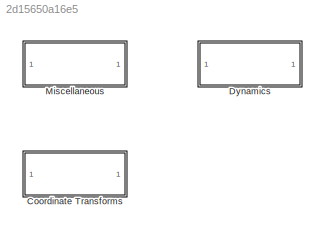
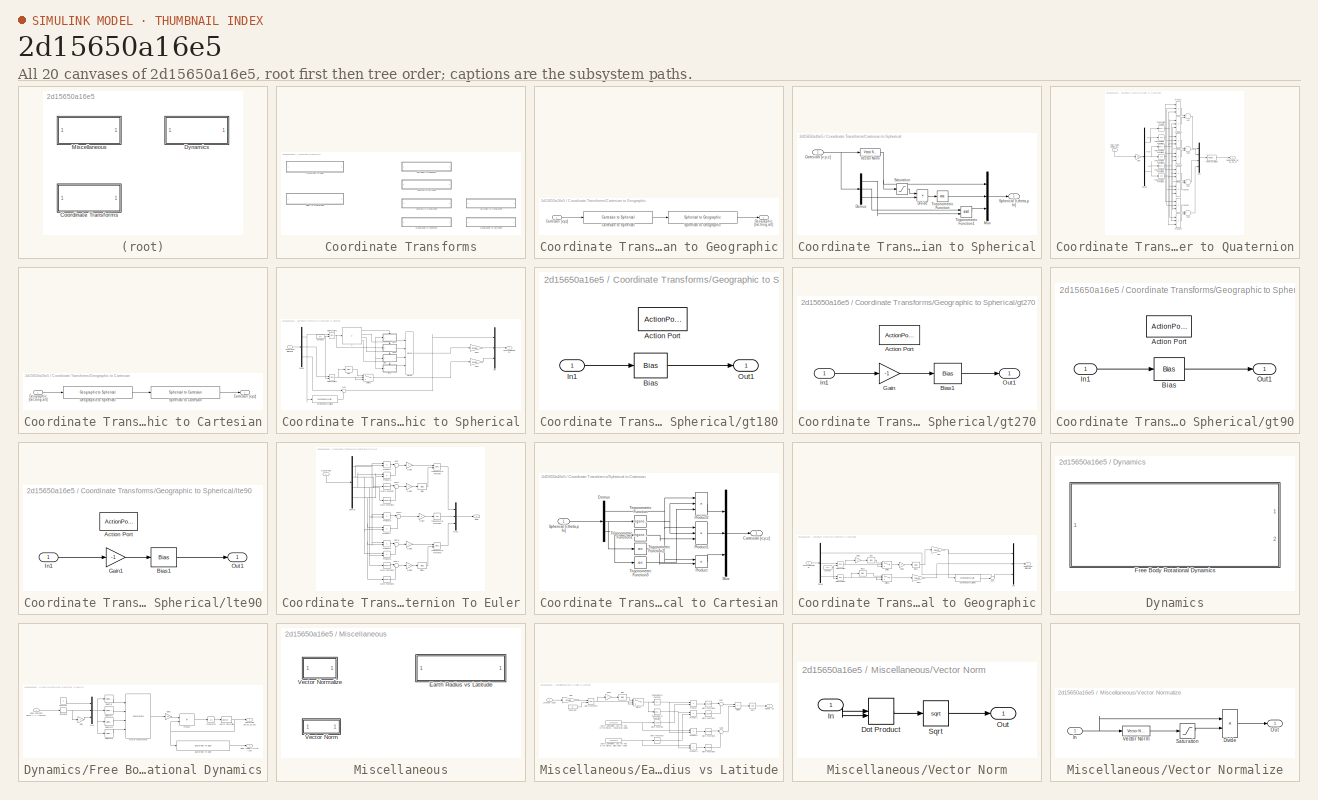
[diagram: thumbnail index - all 20 canvases of the model, root first then tree order]
MODEL slx_2d15650a16e5
KIND library
BLOCK [SubSystem] Coordinate Transforms
  Ports = []
  RequestExecContextInheritance = off
BLOCK [SubSystem] Coordinate Transforms/Cartesian to Geographic
  Ports = [1, 1]
  RequestExecContextInheritance = off
BLOCK [Inport] Coordinate Transforms/Cartesian to Geographic/Cartesian [x;y;z]
  IconDisplay = Port number
  PortDimensions = 3
  SignalType = real
  VarSizeSig = No
BLOCK [Reference] Coordinate Transforms/Cartesian to Geographic/Cartesian to Spherical  REF=MultiRotorSimLibrary/Coordinate Transforms/Cartesian to Spherical
  Ports = [1, 1]
  SourceBlock = MultiRotorSimLibrary/Coordinate Transforms/Cartesian to Spherical
  SourceType = Cartesian to Spherical Coordinate Transform
BLOCK [Outport] Coordinate Transforms/Cartesian to Geographic/Geographic [lat,long,alt]
  IconDisplay = Port number
  PortDimensions = 3
  SignalType = real
  VarSizeSig = No
BLOCK [Reference] Coordinate Transforms/Cartesian to Geographic/Spherical to Geographic  REF=MultiRotorSimLibrary/Coordinate Transforms/Spherical to Geographic
  Ports = [1, 1]
  SourceBlock = MultiRotorSimLibrary/Coordinate Transforms/Spherical to Geographic
  SourceType = Spherical to Geographic Coordinate Transform
BLOCK [SubSystem] Coordinate Transforms/Cartesian to Spherical
  Ports = [1, 1]
  RequestExecContextInheritance = off
BLOCK [Inport] Coordinate Transforms/Cartesian to Spherical/Cartesian [x;y;z]
  IconDisplay = Port number
  PortDimensions = 3
  SignalType = real
  VarSizeSig = No
BLOCK [Demux] Coordinate Transforms/Cartesian to Spherical/Demux
  DisplayOption = bar
  Outputs = 3
  Ports = [1, 3]
BLOCK [Product] Coordinate Transforms/Cartesian to Spherical/Divide
  InputSameDT = off
  Inputs = /*
  OutDataTypeStr = Inherit: Inherit via internal rule
  Ports = [2, 1]
  RndMeth = Floor
  SaturateOnIntegerOverflow = off
BLOCK [Mux] Coordinate Transforms/Cartesian to Spherical/Mux
  DisplayOption = bar
  Inputs = 3
  Ports = [3, 1]
BLOCK [Saturate] Coordinate Transforms/Cartesian to Spherical/Saturation
  InputPortMap = u0
  LowerLimit = eps('single')
  Ports = [1, 1]
  UpperLimit = inf
BLOCK [Outport] Coordinate Transforms/Cartesian to Spherical/Spherical [r,theta,phi]
  IconDisplay = Port number
  PortDimensions = 3
  SignalType = real
  VarSizeSig = No
BLOCK [Trigonometry] Coordinate Transforms/Cartesian to Spherical/Trigonometric Function
  Operator = acos
  Ports = [1, 1]
BLOCK [Trigonometry] Coordinate Transforms/Cartesian to Spherical/Trigonometric Function1
  Operator = atan2
  Ports = [2, 1]
BLOCK [Reference] Coordinate Transforms/Cartesian to Spherical/Vector Norm  REF=MultiRotorSimLibrary/Miscellaneous/Vector Norm
  Ports = [1, 1]
  SourceBlock = MultiRotorSimLibrary/Miscellaneous/Vector Norm
  SourceType = Vector Norm
BLOCK [SubSystem] Coordinate Transforms/Euler to Quaternion
  Ports = [1, 1]
  RequestExecContextInheritance = off
BLOCK [Sum] Coordinate Transforms/Euler to Quaternion/Add
  InputSameDT = off
  OutDataTypeStr = Inherit: Inherit via internal rule
  Ports = [2, 1]
  SaturateOnIntegerOverflow = off
BLOCK [Sum] Coordinate Transforms/Euler to Quaternion/Add1
  InputSameDT = off
  OutDataTypeStr = Inherit: Inherit via internal rule
  Ports = [2, 1]
  SaturateOnIntegerOverflow = off
BLOCK [Sum] Coordinate Transforms/Euler to Quaternion/Add2
  InputSameDT = off
  Inputs = +-
  OutDataTypeStr = Inherit: Inherit via internal rule
  Ports = [2, 1]
  SaturateOnIntegerOverflow = off
BLOCK [Sum] Coordinate Transforms/Euler to Quaternion/Add3
  InputSameDT = off
  Inputs = +-
  OutDataTypeStr = Inherit: Inherit via internal rule
  Ports = [2, 1]
  SaturateOnIntegerOverflow = off
BLOCK [Demux] Coordinate Transforms/Euler to Quaternion/Demux
  DisplayOption = bar
  Outputs = 3
  Ports = [1, 3]
BLOCK [Inport] Coordinate Transforms/Euler to Quaternion/Euler Angles [u'';v'';w''] (rad)
  IconDisplay = Port number
  PortDimensions = 3
  SignalType = real
  VarSizeSig = No
BLOCK [Gain] Coordinate Transforms/Euler to Quaternion/Gain
  Gain = 1/2
  OutDataTypeStr = Inherit: Inherit via internal rule
  ParamDataTypeStr = Inherit: Inherit via internal rule
  SaturateOnIntegerOverflow = off
BLOCK [Mux] Coordinate Transforms/Euler to Quaternion/Mux
  DisplayOption = bar
  Ports = [4, 1]
BLOCK [Product] Coordinate Transforms/Euler to Quaternion/Product
  InputSameDT = off
  Inputs = 3
  OutDataTypeStr = Inherit: Inherit via internal rule
  Ports = [3, 1]
  RndMeth = Floor
  SaturateOnIntegerOverflow = off
BLOCK [Product] Coordinate Transforms/Euler to Quaternion/Product1
  InputSameDT = off
  Inputs = 3
  OutDataTypeStr = Inherit: Inherit via internal rule
  Ports = [3, 1]
  RndMeth = Floor
  SaturateOnIntegerOverflow = off
BLOCK [Product] Coordinate Transforms/Euler to Quaternion/Product2
  InputSameDT = off
  Inputs = 3
  OutDataTypeStr = Inherit: Inherit via internal rule
  Ports = [3, 1]
  RndMeth = Floor
  SaturateOnIntegerOverflow = off
BLOCK [Product] Coordinate Transforms/Euler to Quaternion/Product3
  InputSameDT = off
  Inputs = 3
  OutDataTypeStr = Inherit: Inherit via internal rule
  Ports = [3, 1]
  RndMeth = Floor
  SaturateOnIntegerOverflow = off
BLOCK [Product] Coordinate Transforms/Euler to Quaternion/Product4
  InputSameDT = off
  Inputs = 3
  OutDataTypeStr = Inherit: Inherit via internal rule
  Ports = [3, 1]
  RndMeth = Floor
  SaturateOnIntegerOverflow = off
BLOCK [Product] Coordinate Transforms/Euler to Quaternion/Product5
  InputSameDT = off
  Inputs = 3
  OutDataTypeStr = Inherit: Inherit via internal rule
  Ports = [3, 1]
  RndMeth = Floor
  SaturateOnIntegerOverflow = off
BLOCK [Product] Coordinate Transforms/Euler to Quaternion/Product6
  InputSameDT = off
  Inputs = 3
  OutDataTypeStr = Inherit: Inherit via internal rule
  Ports = [3, 1]
  RndMeth = Floor
  SaturateOnIntegerOverflow = off
BLOCK [Product] Coordinate Transforms/Euler to Quaternion/Product7
  InputSameDT = off
  Inputs = 3
  OutDataTypeStr = Inherit: Inherit via internal rule
  Ports = [3, 1]
  RndMeth = Floor
  SaturateOnIntegerOverflow = off
BLOCK [Outport] Coordinate Transforms/Euler to Quaternion/Quaternion [q_0;q_1;q_2;q_3]
  IconDisplay = Port number
  PortDimensions = 4
  SignalType = real
  VarSizeSig = No
BLOCK [Trigonometry] Coordinate Transforms/Euler to Quaternion/Trigonometric Function
  Ports = [1, 1]
BLOCK [Trigonometry] Coordinate Transforms/Euler to Quaternion/Trigonometric Function1
  Operator = cos
  Ports = [1, 1]
BLOCK [Trigonometry] Coordinate Transforms/Euler to Quaternion/Trigonometric Function2
  Operator = cos
  Ports = [1, 1]
BLOCK [Trigonometry] Coordinate Transforms/Euler to Quaternion/Trigonometric Function3
  Operator = cos
  Ports = [1, 1]
BLOCK [Trigonometry] Coordinate Transforms/Euler to Quaternion/Trigonometric Function4
  Ports = [1, 1]
BLOCK [Trigonometry] Coordinate Transforms/Euler to Quaternion/Trigonometric Function5
  Ports = [1, 1]
BLOCK [Reference] Coordinate Transforms/Euler to Quaternion/Vector Normalize  REF=MultiRotorSimLibrary/Miscellaneous/Vector Normalize
  Ports = [1, 1]
  SourceBlock = MultiRotorSimLibrary/Miscellaneous/Vector Normalize
  SourceType = Vector Normalize
BLOCK [SubSystem] Coordinate Transforms/Geographic to Cartesian
  Ports = [1, 1]
  RequestExecContextInheritance = off
BLOCK [Outport] Coordinate Transforms/Geographic to Cartesian/Cartesian [x;y;z]
  IconDisplay = Port number
  PortDimensions = 3
  SignalType = real
  VarSizeSig = No
BLOCK [Inport] Coordinate Transforms/Geographic to Cartesian/Geographic [lat,long,alt]
  IconDisplay = Port number
  PortDimensions = 3
  SignalType = real
  VarSizeSig = No
BLOCK [Reference] Coordinate Transforms/Geographic to Cartesian/Geographic to Spherical  REF=MultiRotorSimLibrary/Coordinate Transforms/Geographic to Spherical
  Ports = [1, 1]
  SourceBlock = MultiRotorSimLibrary/Coordinate Transforms/Geographic to Spherical
  SourceType = Geographic to Spherical Coordinate Transform
BLOCK [Reference] Coordinate Transforms/Geographic to Cartesian/Spherical to Cartesian  REF=MultiRotorSimLibrary/Coordinate Transforms/Spherical to Cartesian
  Ports = [1, 1]
  SourceBlock = MultiRotorSimLibrary/Coordinate Transforms/Spherical to Cartesian
  SourceType = Spherical to Cartesian Coordinate Transform
BLOCK [SubSystem] Coordinate Transforms/Geographic to Spherical
  Ports = [1, 1]
  RequestExecContextInheritance = off
BLOCK [Bias] Coordinate Transforms/Geographic to Spherical/Bias
  Bias = -360
  SaturateOnIntegerOverflow = off
BLOCK [Constant] Coordinate Transforms/Geographic to Spherical/Constant1
  Value = 360
BLOCK [Demux] Coordinate Transforms/Geographic to Spherical/Demux
  DisplayOption = bar
  Outputs = 3
  Ports = [1, 3]
BLOCK [Reference] Coordinate Transforms/Geographic to Spherical/Earth Radius vs Latitude  REF=MultiRotorSimLibrary/Miscellaneous/Earth Radius vs Latitude
  Ports = [1, 1]
  SourceBlock = MultiRotorSimLibrary/Miscellaneous/Earth Radius vs Latitude
  SourceType = Earth Radius vs Latitude
BLOCK [Gain] Coordinate Transforms/Geographic to Spherical/Gain1
  Gain = pi/180
  OutDataTypeStr = Inherit: Inherit via internal rule
  ParamDataTypeStr = Inherit: Inherit via internal rule
  SaturateOnIntegerOverflow = off
BLOCK [Gain] Coordinate Transforms/Geographic to Spherical/Gain2
  Gain = pi/180
  OutDataTypeStr = Inherit: Inherit via internal rule
  ParamDataTypeStr = Inherit: Inherit via internal rule
  SaturateOnIntegerOverflow = off
BLOCK [Inport] Coordinate Transforms/Geographic to Spherical/Geographic [lat,long,alt]
  IconDisplay = Port number
  PortDimensions = 3
  SignalType = real
  VarSizeSig = No
BLOCK [If] Coordinate Transforms/Geographic to Spherical/If
  ElseIfExpressions = u1 > 180, u1 > 90
  IfExpression = u1 > 270
  Ports = [1, 4]
BLOCK [Math] Coordinate Transforms/Geographic to Spherical/Math Function1
  Operator = mod
  Ports = [2, 1]
BLOCK [Math] Coordinate Transforms/Geographic to Spherical/Math Function2
  Operator = mod
  Ports = [2, 1]
BLOCK [Merge] Coordinate Transforms/Geographic to Spherical/Merge
  Inputs = 4
  Ports = [4, 1]
BLOCK [Mux] Coordinate Transforms/Geographic to Spherical/Mux
  DisplayOption = bar
  Inputs = 3
  Ports = [3, 1]
BLOCK [Outport] Coordinate Transforms/Geographic to Spherical/Spherical [r,theta,phi]
  IconDisplay = Port number
  PortDimensions = 3
  SignalType = real
  VarSizeSig = No
BLOCK [Sum] Coordinate Transforms/Geographic to Spherical/Sum
  IconShape = round
  InputSameDT = off
  Inputs = |++
  OutDataTypeStr = Inherit: Inherit via internal rule
  Ports = [2, 1]
  SaturateOnIntegerOverflow = off
BLOCK [Switch] Coordinate Transforms/Geographic to Spherical/Switch1
  Criteria = u2 > Threshold
  InputSameDT = off
  SaturateOnIntegerOverflow = off
  Threshold = 180
BLOCK [SubSystem] Coordinate Transforms/Geographic to Spherical/gt180
  Ports = [1, 1, 0, 0, 0, 0, 0, 1]
  RequestExecContextInheritance = off
  TreatAsAtomicUnit = on
BLOCK [ActionPort] Coordinate Transforms/Geographic to Spherical/gt180/Action Port
  ActionType = elseif
BLOCK [Bias] Coordinate Transforms/Geographic to Spherical/gt180/Bias
  Bias = -90
  SaturateOnIntegerOverflow = off
BLOCK [Inport] Coordinate Transforms/Geographic to Spherical/gt180/In1
  IconDisplay = Port number
BLOCK [Outport] Coordinate Transforms/Geographic to Spherical/gt180/Out1
  IconDisplay = Port number
BLOCK [SubSystem] Coordinate Transforms/Geographic to Spherical/gt270
  Ports = [1, 1, 0, 0, 0, 0, 0, 1]
  RequestExecContextInheritance = off
  TreatAsAtomicUnit = on
BLOCK [ActionPort] Coordinate Transforms/Geographic to Spherical/gt270/Action Port
  ActionType = then
BLOCK [Bias] Coordinate Transforms/Geographic to Spherical/gt270/Bias1
  Bias = 450
  SaturateOnIntegerOverflow = off
BLOCK [Gain] Coordinate Transforms/Geographic to Spherical/gt270/Gain
  Gain = -1
  OutDataTypeStr = Inherit: Inherit via internal rule
  ParamDataTypeStr = Inherit: Inherit via internal rule
  SaturateOnIntegerOverflow = off
BLOCK [Inport] Coordinate Transforms/Geographic to Spherical/gt270/In1
  IconDisplay = Port number
BLOCK [Outport] Coordinate Transforms/Geographic to Spherical/gt270/Out1
  IconDisplay = Port number
BLOCK [SubSystem] Coordinate Transforms/Geographic to Spherical/gt90
  Ports = [1, 1, 0, 0, 0, 0, 0, 1]
  RequestExecContextInheritance = off
  TreatAsAtomicUnit = on
BLOCK [ActionPort] Coordinate Transforms/Geographic to Spherical/gt90/Action Port
  ActionType = elseif
BLOCK [Bias] Coordinate Transforms/Geographic to Spherical/gt90/Bias
  Bias = -90
  SaturateOnIntegerOverflow = off
BLOCK [Inport] Coordinate Transforms/Geographic to Spherical/gt90/In1
  IconDisplay = Port number
BLOCK [Outport] Coordinate Transforms/Geographic to Spherical/gt90/Out1
  IconDisplay = Port number
BLOCK [SubSystem] Coordinate Transforms/Geographic to Spherical/lte90
  Ports = [1, 1, 0, 0, 0, 0, 0, 1]
  RequestExecContextInheritance = off
  TreatAsAtomicUnit = on
BLOCK [ActionPort] Coordinate Transforms/Geographic to Spherical/lte90/Action Port
  ActionType = else
BLOCK [Bias] Coordinate Transforms/Geographic to Spherical/lte90/Bias1
  Bias = 90
  SaturateOnIntegerOverflow = off
BLOCK [Gain] Coordinate Transforms/Geographic to Spherical/lte90/Gain1
  Gain = -1
  OutDataTypeStr = Inherit: Inherit via internal rule
  ParamDataTypeStr = Inherit: Inherit via internal rule
  SaturateOnIntegerOverflow = off
BLOCK [Inport] Coordinate Transforms/Geographic to Spherical/lte90/In1
  IconDisplay = Port number
BLOCK [Outport] Coordinate Transforms/Geographic to Spherical/lte90/Out1
  IconDisplay = Port number
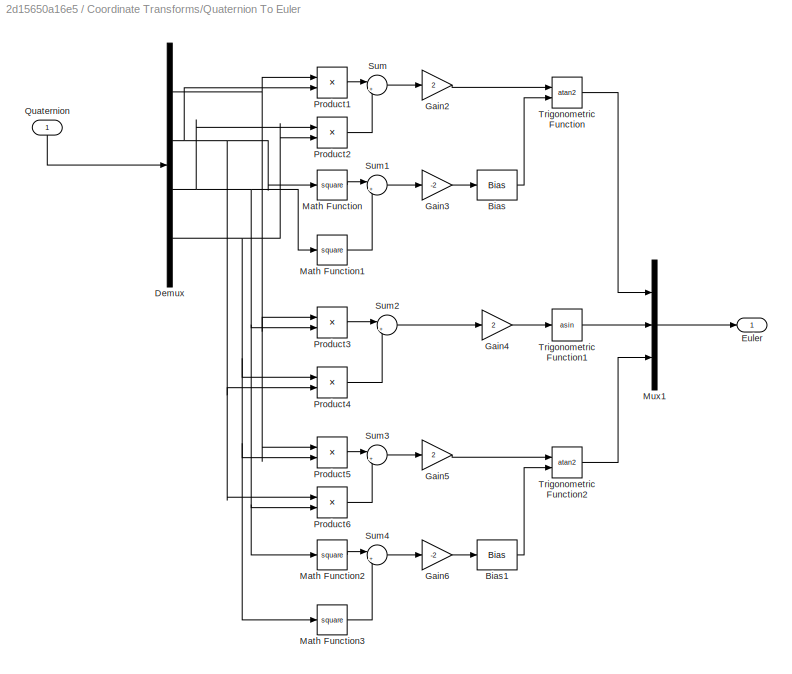
BLOCK [SubSystem] Coordinate Transforms/Quaternion To Euler
  Ports = [1, 1]
  RequestExecContextInheritance = off
BLOCK [Bias] Coordinate Transforms/Quaternion To Euler/Bias
  Bias = 1
  SaturateOnIntegerOverflow = off
BLOCK [Bias] Coordinate Transforms/Quaternion To Euler/Bias1
  Bias = 1
  SaturateOnIntegerOverflow = off
BLOCK [Demux] Coordinate Transforms/Quaternion To Euler/Demux
  DisplayOption = bar
  Ports = [1, 4]
BLOCK [Outport] Coordinate Transforms/Quaternion To Euler/Euler
  IconDisplay = Port number
  PortDimensions = 3
  SignalType = real
  VarSizeSig = No
BLOCK [Gain] Coordinate Transforms/Quaternion To Euler/Gain2
  Gain = 2
  OutDataTypeStr = Inherit: Inherit via internal rule
  ParamDataTypeStr = Inherit: Inherit via internal rule
  SaturateOnIntegerOverflow = off
BLOCK [Gain] Coordinate Transforms/Quaternion To Euler/Gain3
  Gain = -2
  OutDataTypeStr = Inherit: Inherit via internal rule
  ParamDataTypeStr = Inherit: Inherit via internal rule
  SaturateOnIntegerOverflow = off
BLOCK [Gain] Coordinate Transforms/Quaternion To Euler/Gain4
  Gain = 2
  OutDataTypeStr = Inherit: Inherit via internal rule
  ParamDataTypeStr = Inherit: Inherit via internal rule
  SaturateOnIntegerOverflow = off
BLOCK [Gain] Coordinate Transforms/Quaternion To Euler/Gain5
  Gain = 2
  OutDataTypeStr = Inherit: Inherit via internal rule
  ParamDataTypeStr = Inherit: Inherit via internal rule
  SaturateOnIntegerOverflow = off
BLOCK [Gain] Coordinate Transforms/Quaternion To Euler/Gain6
  Gain = -2
  OutDataTypeStr = Inherit: Inherit via internal rule
  ParamDataTypeStr = Inherit: Inherit via internal rule
  SaturateOnIntegerOverflow = off
BLOCK [Math] Coordinate Transforms/Quaternion To Euler/Math Function
  Operator = square
  OutputSignalType = real
  Ports = [1, 1]
BLOCK [Math] Coordinate Transforms/Quaternion To Euler/Math Function1
  Operator = square
  OutputSignalType = real
  Ports = [1, 1]
BLOCK [Math] Coordinate Transforms/Quaternion To Euler/Math Function2
  Operator = square
  OutputSignalType = real
  Ports = [1, 1]
BLOCK [Math] Coordinate Transforms/Quaternion To Euler/Math Function3
  Operator = square
  OutputSignalType = real
  Ports = [1, 1]
BLOCK [Mux] Coordinate Transforms/Quaternion To Euler/Mux1
  DisplayOption = bar
  Inputs = 3
  Ports = [3, 1]
BLOCK [Product] Coordinate Transforms/Quaternion To Euler/Product1
  InputSameDT = off
  OutDataTypeStr = Inherit: Inherit via internal rule
  Ports = [2, 1]
  RndMeth = Floor
  SaturateOnIntegerOverflow = off
BLOCK [Product] Coordinate Transforms/Quaternion To Euler/Product2
  InputSameDT = off
  OutDataTypeStr = Inherit: Inherit via internal rule
  Ports = [2, 1]
  RndMeth = Floor
  SaturateOnIntegerOverflow = off
BLOCK [Product] Coordinate Transforms/Quaternion To Euler/Product3
  InputSameDT = off
  OutDataTypeStr = Inherit: Inherit via internal rule
  Ports = [2, 1]
  RndMeth = Floor
  SaturateOnIntegerOverflow = off
BLOCK [Product] Coordinate Transforms/Quaternion To Euler/Product4
  InputSameDT = off
  OutDataTypeStr = Inherit: Inherit via internal rule
  Ports = [2, 1]
  RndMeth = Floor
  SaturateOnIntegerOverflow = off
BLOCK [Product] Coordinate Transforms/Quaternion To Euler/Product5
  InputSameDT = off
  OutDataTypeStr = Inherit: Inherit via internal rule
  Ports = [2, 1]
  RndMeth = Floor
  SaturateOnIntegerOverflow = off
BLOCK [Product] Coordinate Transforms/Quaternion To Euler/Product6
  InputSameDT = off
  OutDataTypeStr = Inherit: Inherit via internal rule
  Ports = [2, 1]
  RndMeth = Floor
  SaturateOnIntegerOverflow = off
BLOCK [Inport] Coordinate Transforms/Quaternion To Euler/Quaternion
  IconDisplay = Port number
  PortDimensions = 4
  SignalType = real
  VarSizeSig = No
BLOCK [Sum] Coordinate Transforms/Quaternion To Euler/Sum
  IconShape = round
  InputSameDT = off
  Inputs = |++
  OutDataTypeStr = Inherit: Inherit via internal rule
  Ports = [2, 1]
  SaturateOnIntegerOverflow = off
BLOCK [Sum] Coordinate Transforms/Quaternion To Euler/Sum1
  IconShape = round
  InputSameDT = off
  Inputs = |++
  OutDataTypeStr = Inherit: Inherit via internal rule
  Ports = [2, 1]
  SaturateOnIntegerOverflow = off
BLOCK [Sum] Coordinate Transforms/Quaternion To Euler/Sum2
  IconShape = round
  InputSameDT = off
  Inputs = |+-
  OutDataTypeStr = Inherit: Inherit via internal rule
  Ports = [2, 1]
  SaturateOnIntegerOverflow = off
BLOCK [Sum] Coordinate Transforms/Quaternion To Euler/Sum3
  IconShape = round
  InputSameDT = off
  Inputs = |++
  OutDataTypeStr = Inherit: Inherit via internal rule
  Ports = [2, 1]
  SaturateOnIntegerOverflow = off
BLOCK [Sum] Coordinate Transforms/Quaternion To Euler/Sum4
  IconShape = round
  InputSameDT = off
  Inputs = |++
  OutDataTypeStr = Inherit: Inherit via internal rule
  Ports = [2, 1]
  SaturateOnIntegerOverflow = off
BLOCK [Trigonometry] Coordinate Transforms/Quaternion To Euler/Trigonometric Function
  Operator = atan2
  OutputSignalType = real
  Ports = [2, 1]
BLOCK [Trigonometry] Coordinate Transforms/Quaternion To Euler/Trigonometric Function1
  Operator = asin
  OutputSignalType = real
  Ports = [1, 1]
BLOCK [Trigonometry] Coordinate Transforms/Quaternion To Euler/Trigonometric Function2
  Operator = atan2
  OutputSignalType = real
  Ports = [2, 1]
BLOCK [SubSystem] Coordinate Transforms/Spherical to Cartesian
  Ports = [1, 1]
  RequestExecContextInheritance = off
BLOCK [Outport] Coordinate Transforms/Spherical to Cartesian/Cartesian [x;y;z]
  IconDisplay = Port number
  PortDimensions = 3
  SignalType = real
  VarSizeSig = No
BLOCK [Demux] Coordinate Transforms/Spherical to Cartesian/Demux
  DisplayOption = bar
  Outputs = 3
  Ports = [1, 3]
BLOCK [Mux] Coordinate Transforms/Spherical to Cartesian/Mux
  DisplayOption = bar
  Inputs = 3
  Ports = [3, 1]
BLOCK [Product] Coordinate Transforms/Spherical to Cartesian/Product
  InputSameDT = off
  OutDataTypeStr = Inherit: Inherit via internal rule
  Ports = [2, 1]
  RndMeth = Floor
  SaturateOnIntegerOverflow = off
BLOCK [Product] Coordinate Transforms/Spherical to Cartesian/Product1
  InputSameDT = off
  Inputs = 3
  OutDataTypeStr = Inherit: Inherit via internal rule
  Ports = [3, 1]
  RndMeth = Floor
  SaturateOnIntegerOverflow = off
BLOCK [Product] Coordinate Transforms/Spherical to Cartesian/Product2
  InputSameDT = off
  Inputs = 3
  OutDataTypeStr = Inherit: Inherit via internal rule
  Ports = [3, 1]
  RndMeth = Floor
  SaturateOnIntegerOverflow = off
BLOCK [Inport] Coordinate Transforms/Spherical to Cartesian/Spherical [r,theta,phi]
  IconDisplay = Port number
  PortDimensions = 3
  SignalType = real
  VarSizeSig = No
BLOCK [Trigonometry] Coordinate Transforms/Spherical to Cartesian/Trigonometric Function
  Ports = [1, 1]
BLOCK [Trigonometry] Coordinate Transforms/Spherical to Cartesian/Trigonometric Function1
  Ports = [1, 1]
BLOCK [Trigonometry] Coordinate Transforms/Spherical to Cartesian/Trigonometric Function2
  Operator = cos
  Ports = [1, 1]
BLOCK [Trigonometry] Coordinate Transforms/Spherical to Cartesian/Trigonometric Function3
  Operator = cos
  Ports = [1, 1]
BLOCK [SubSystem] Coordinate Transforms/Spherical to Geographic
  Ports = [1, 1]
  RequestExecContextInheritance = off
BLOCK [Bias] Coordinate Transforms/Spherical to Geographic/Bias
  Bias = 2*pi
  SaturateOnIntegerOverflow = off
BLOCK [Bias] Coordinate Transforms/Spherical to Geographic/Bias1
  Bias = pi/2
  SaturateOnIntegerOverflow = off
BLOCK [Bias] Coordinate Transforms/Spherical to Geographic/Bias2
  Bias = -2*pi
  SaturateOnIntegerOverflow = off
BLOCK [Constant] Coordinate Transforms/Spherical to Geographic/Constant
  Value = 2*pi
BLOCK [Demux] Coordinate Transforms/Spherical to Geographic/Demux
  DisplayOption = bar
  Outputs = 3
  Ports = [1, 3]
BLOCK [Reference] Coordinate Transforms/Spherical to Geographic/Earth Radius vs Latitude  REF=MultiRotorSimLibrary/Miscellaneous/Earth Radius vs Latitude
  Ports = [1, 1]
  SourceBlock = MultiRotorSimLibrary/Miscellaneous/Earth Radius vs Latitude
  SourceType = Earth Radius vs Latitude
BLOCK [Gain] Coordinate Transforms/Spherical to Geographic/Gain
  Gain = 180/pi
  OutDataTypeStr = Inherit: Inherit via internal rule
  ParamDataTypeStr = Inherit: Inherit via internal rule
  SaturateOnIntegerOverflow = off
BLOCK [Gain] Coordinate Transforms/Spherical to Geographic/Gain1
  Gain = 180/pi
  OutDataTypeStr = Inherit: Inherit via internal rule
  ParamDataTypeStr = Inherit: Inherit via internal rule
  SaturateOnIntegerOverflow = off
BLOCK [Gain] Coordinate Transforms/Spherical to Geographic/Gain2
  Gain = -1
  OutDataTypeStr = Inherit: Inherit via internal rule
  ParamDataTypeStr = Inherit: Inherit via internal rule
  SaturateOnIntegerOverflow = off
BLOCK [Gain] Coordinate Transforms/Spherical to Geographic/Gain3
  Gain = -1
  OutDataTypeStr = Inherit: Inherit via internal rule
  ParamDataTypeStr = Inherit: Inherit via internal rule
  SaturateOnIntegerOverflow = off
BLOCK [Outport] Coordinate Transforms/Spherical to Geographic/Geographic [lat,long,alt]
  IconDisplay = Port number
  PortDimensions = 3
  SignalType = real
  VarSizeSig = No
BLOCK [Math] Coordinate Transforms/Spherical to Geographic/Math Function
  Operator = mod
  Ports = [2, 1]
BLOCK [Math] Coordinate Transforms/Spherical to Geographic/Math Function1
  Operator = mod
  Ports = [2, 1]
BLOCK [Mux] Coordinate Transforms/Spherical to Geographic/Mux
  DisplayOption = bar
  Inputs = 3
  Ports = [3, 1]
BLOCK [Inport] Coordinate Transforms/Spherical to Geographic/Spherical [r,theta,phi]
  IconDisplay = Port number
  PortDimensions = 3
  SignalType = real
  VarSizeSig = No
BLOCK [Sum] Coordinate Transforms/Spherical to Geographic/Sum
  IconShape = round
  InputSameDT = off
  Inputs = +-|
  OutDataTypeStr = Inherit: Inherit via internal rule
  Ports = [2, 1]
  SaturateOnIntegerOverflow = off
BLOCK [Switch] Coordinate Transforms/Spherical to Geographic/Switch
  Criteria = u2 > Threshold
  InputSameDT = off
  SaturateOnIntegerOverflow = off
  Threshold = pi
BLOCK [Switch] Coordinate Transforms/Spherical to Geographic/Switch1
  Criteria = u2 > Threshold
  InputSameDT = off
  SaturateOnIntegerOverflow = off
  Threshold = pi
BLOCK [SubSystem] Dynamics
  Ports = []
  RequestExecContextInheritance = off
BLOCK [SubSystem] Dynamics/Free Body Rotational Dynamics
  Ports = [1, 2]
  RequestExecContextInheritance = off
BLOCK [Inport] Dynamics/Free Body Rotational Dynamics/Body Rotation Rates [wx;wy;wz] (rad//sec)
  IconDisplay = Port number
  PortDimensions = 3
  SignalType = real
  VarSizeSig = No
BLOCK [Constant] Dynamics/Free Body Rotational Dynamics/Constant
  Value = 0
BLOCK [Outport] Dynamics/Free Body Rotational Dynamics/Euler Angles [u;v;w] (rad)
  IconDisplay = Port number
  Port = 2
  PortDimensions = 3
  SignalType = real
  VarSizeSig = No
BLOCK [Gain] Dynamics/Free Body Rotational Dynamics/Gain
  Gain = -1
  OutDataTypeStr = Inherit: Inherit via internal rule
  ParamDataTypeStr = Inherit: Inherit via internal rule
  SaturateOnIntegerOverflow = off
BLOCK [Gain] Dynamics/Free Body Rotational Dynamics/Gain1
  Gain = 1/2
  OutDataTypeStr = Inherit: Inherit via internal rule
  ParamDataTypeStr = Inherit: Inherit via internal rule
  SaturateOnIntegerOverflow = off
BLOCK [Integrator] Dynamics/Free Body Rotational Dynamics/Integrator
  InitialCondition = initialValueUsedQuat
  Ports = [1, 1]
BLOCK [Concatenate] Dynamics/Free Body Rotational Dynamics/Matrix Concatenate
  ConcatenateDimension = 2
  Mode = Multidimensional array
  NumInputs = 4
  Ports = [4, 1]
BLOCK [Mux] Dynamics/Free Body Rotational Dynamics/Mux
  DisplayOption = bar
  Inputs = 3
  Ports = [3, 1]
BLOCK [Product] Dynamics/Free Body Rotational Dynamics/Product
  InputSameDT = off
  Multiplication = Matrix(*)
  OutDataTypeStr = Inherit: Inherit via internal rule
  Ports = [2, 1]
  RndMeth = Floor
  SaturateOnIntegerOverflow = off
BLOCK [Reference] Dynamics/Free Body Rotational Dynamics/Quaternion To Euler  REF=MultiRotorSimLibrary/Coordinate Transforms/Quaternion To Euler
  Ports = [1, 1]
  SourceBlock = MultiRotorSimLibrary/Coordinate Transforms/Quaternion To Euler
  SourceType = Quaternion to Euler Transformation
BLOCK [Outport] Dynamics/Free Body Rotational Dynamics/Quaternion [q0;q1;q2;q3]
  IconDisplay = Port number
  PortDimensions = 4
  SignalType = real
  VarSizeSig = No
BLOCK [Reshape] Dynamics/Free Body Rotational Dynamics/Reshape
  OutputDimensionality = Column vector (2-D)
  Ports = [1, 1]
BLOCK [Selector] Dynamics/Free Body Rotational Dynamics/Selector
  Indices = [1;2;3;4]
  InputPortWidth = 7
  Ports = [1, 1]
BLOCK [Selector] Dynamics/Free Body Rotational Dynamics/Selector1
  Indices = [5;1;7;3]
  InputPortWidth = 7
  Ports = [1, 1]
BLOCK [Selector] Dynamics/Free Body Rotational Dynamics/Selector2
  Indices = [6;4;1;5]
  InputPortWidth = 7
  Ports = [1, 1]
BLOCK [Selector] Dynamics/Free Body Rotational Dynamics/Selector3
  Indices = [7;6;2;1]
  InputPortWidth = 7
  Ports = [1, 1]
BLOCK [Reference] Dynamics/Free Body Rotational Dynamics/Vector Normalize  REF=MultiRotorSimLibrary/Miscellaneous/Vector Normalize
  Ports = [1, 1]
  SourceBlock = MultiRotorSimLibrary/Miscellaneous/Vector Normalize
  SourceType = Vector Normalize
BLOCK [SubSystem] Miscellaneous
  Ports = []
  RequestExecContextInheritance = off
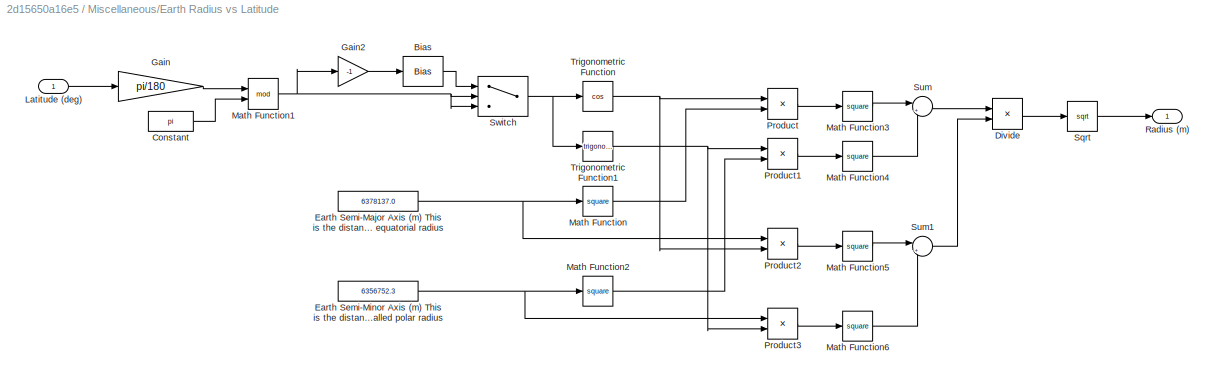
BLOCK [SubSystem] Miscellaneous/Earth Radius vs Latitude
  Ports = [1, 1]
  RequestExecContextInheritance = off
BLOCK [Bias] Miscellaneous/Earth Radius vs Latitude/Bias
  Bias = pi
  SaturateOnIntegerOverflow = off
BLOCK [Constant] Miscellaneous/Earth Radius vs Latitude/Constant
  Value = pi
BLOCK [Product] Miscellaneous/Earth Radius vs Latitude/Divide
  InputSameDT = off
  Inputs = */
  OutDataTypeStr = Inherit: Inherit via internal rule
  Ports = [2, 1]
  RndMeth = Floor
  SaturateOnIntegerOverflow = off
BLOCK [Constant] Miscellaneous/Earth Radius vs Latitude/Earth Semi-Major Axis (m) This is the distance from center to equator Also called equatorial radius
  Value = 6378137.0
BLOCK [Constant] Miscellaneous/Earth Radius vs Latitude/Earth Semi-Minor Axis (m) This is the distance from center to North//South Pole Also called polar radius
  Value = 6356752.3
BLOCK [Gain] Miscellaneous/Earth Radius vs Latitude/Gain
  Gain = pi/180
  OutDataTypeStr = Inherit: Inherit via internal rule
  ParamDataTypeStr = Inherit: Inherit via internal rule
  SaturateOnIntegerOverflow = off
BLOCK [Gain] Miscellaneous/Earth Radius vs Latitude/Gain2
  Gain = -1
  OutDataTypeStr = Inherit: Inherit via internal rule
  ParamDataTypeStr = Inherit: Inherit via internal rule
  SaturateOnIntegerOverflow = off
BLOCK [Inport] Miscellaneous/Earth Radius vs Latitude/Latitude (deg)
  IconDisplay = Port number
BLOCK [Math] Miscellaneous/Earth Radius vs Latitude/Math Function
  Operator = square
  Ports = [1, 1]
BLOCK [Math] Miscellaneous/Earth Radius vs Latitude/Math Function1
  Operator = mod
  Ports = [2, 1]
BLOCK [Math] Miscellaneous/Earth Radius vs Latitude/Math Function2
  Operator = square
  Ports = [1, 1]
BLOCK [Math] Miscellaneous/Earth Radius vs Latitude/Math Function3
  Operator = square
  Ports = [1, 1]
BLOCK [Math] Miscellaneous/Earth Radius vs Latitude/Math Function4
  Operator = square
  Ports = [1, 1]
BLOCK [Math] Miscellaneous/Earth Radius vs Latitude/Math Function5
  Operator = square
  Ports = [1, 1]
BLOCK [Math] Miscellaneous/Earth Radius vs Latitude/Math Function6
  Operator = square
  Ports = [1, 1]
BLOCK [Product] Miscellaneous/Earth Radius vs Latitude/Product
  InputSameDT = off
  OutDataTypeStr = Inherit: Inherit via internal rule
  Ports = [2, 1]
  RndMeth = Floor
  SaturateOnIntegerOverflow = off
BLOCK [Product] Miscellaneous/Earth Radius vs Latitude/Product1
  InputSameDT = off
  OutDataTypeStr = Inherit: Inherit via internal rule
  Ports = [2, 1]
  RndMeth = Floor
  SaturateOnIntegerOverflow = off
BLOCK [Product] Miscellaneous/Earth Radius vs Latitude/Product2
  InputSameDT = off
  OutDataTypeStr = Inherit: Inherit via internal rule
  Ports = [2, 1]
  RndMeth = Floor
  SaturateOnIntegerOverflow = off
BLOCK [Product] Miscellaneous/Earth Radius vs Latitude/Product3
  InputSameDT = off
  OutDataTypeStr = Inherit: Inherit via internal rule
  Ports = [2, 1]
  RndMeth = Floor
  SaturateOnIntegerOverflow = off
BLOCK [Outport] Miscellaneous/Earth Radius vs Latitude/Radius (m)
  IconDisplay = Port number
BLOCK [Sqrt] Miscellaneous/Earth Radius vs Latitude/Sqrt
  OutputSignalType = real
BLOCK [Sum] Miscellaneous/Earth Radius vs Latitude/Sum
  IconShape = round
  InputSameDT = off
  Inputs = |++
  OutDataTypeStr = Inherit: Inherit via internal rule
  Ports = [2, 1]
  SaturateOnIntegerOverflow = off
BLOCK [Sum] Miscellaneous/Earth Radius vs Latitude/Sum1
  IconShape = round
  InputSameDT = off
  Inputs = |++
  OutDataTypeStr = Inherit: Inherit via internal rule
  Ports = [2, 1]
  SaturateOnIntegerOverflow = off
BLOCK [Switch] Miscellaneous/Earth Radius vs Latitude/Switch
  Criteria = u2 > Threshold
  InputSameDT = off
  SaturateOnIntegerOverflow = off
  Threshold = pi/2
BLOCK [Trigonometry] Miscellaneous/Earth Radius vs Latitude/Trigonometric Function
  Operator = cos
  Ports = [1, 1]
BLOCK [Trigonometry] Miscellaneous/Earth Radius vs Latitude/Trigonometric Function1
  Ports = [1, 1]
BLOCK [SubSystem] Miscellaneous/Vector Norm
  Ports = [1, 1]
  RequestExecContextInheritance = off
BLOCK [DotProduct] Miscellaneous/Vector Norm/Dot Product
  OutDataTypeStr = Inherit: Inherit via internal rule
BLOCK [Inport] Miscellaneous/Vector Norm/In
  IconDisplay = Port number
BLOCK [Outport] Miscellaneous/Vector Norm/Out
  IconDisplay = Port number
  PortDimensions = 1
  SignalType = real
BLOCK [Sqrt] Miscellaneous/Vector Norm/Sqrt
  OutputSignalType = real
BLOCK [SubSystem] Miscellaneous/Vector Normalize
  Ports = [1, 1]
  RequestExecContextInheritance = off
BLOCK [Product] Miscellaneous/Vector Normalize/Divide
  InputSameDT = off
  Inputs = */
  OutDataTypeStr = Inherit: Inherit via internal rule
  Ports = [2, 1]
  RndMeth = Floor
  SaturateOnIntegerOverflow = off
BLOCK [Inport] Miscellaneous/Vector Normalize/In
  IconDisplay = Port number
  SignalType = real
BLOCK [Outport] Miscellaneous/Vector Normalize/Out
  IconDisplay = Port number
  SignalType = real
BLOCK [Saturate] Miscellaneous/Vector Normalize/Saturation
  InputPortMap = u0
  LowerLimit = eps('single')
  Ports = [1, 1]
  UpperLimit = inf
BLOCK [Reference] Miscellaneous/Vector Normalize/Vector Norm  REF=MultiRotorSimLibrary/Miscellaneous/Vector Norm
  Ports = [1, 1]
  SourceBlock = MultiRotorSimLibrary/Miscellaneous/Vector Norm
  SourceType = Vector Norm
LINE Coordinate Transforms/Cartesian to Geographic/Cartesian [x;y;z]:1 -> Coordinate Transforms/Cartesian to Geographic/Cartesian to Spherical:1
LINE Coordinate Transforms/Cartesian to Geographic/Cartesian to Spherical:1 -> Coordinate Transforms/Cartesian to Geographic/Spherical to Geographic:1
LINE Coordinate Transforms/Cartesian to Geographic/Spherical to Geographic:1 -> Coordinate Transforms/Cartesian to Geographic/Geographic [lat,long,alt]:1
NET Coordinate Transforms/Cartesian to Spherical/Cartesian [x;y;z]:1 -> Coordinate Transforms/Cartesian to Spherical/Demux:1, Coordinate Transforms/Cartesian to Spherical/Vector Norm:1
LINE Coordinate Transforms/Cartesian to Spherical/Demux:1 -> Coordinate Transforms/Cartesian to Spherical/Trigonometric Function1:2
LINE Coordinate Transforms/Cartesian to Spherical/Demux:2 -> Coordinate Transforms/Cartesian to Spherical/Trigonometric Function1:1
LINE Coordinate Transforms/Cartesian to Spherical/Demux:3 -> Coordinate Transforms/Cartesian to Spherical/Divide:2
LINE Coordinate Transforms/Cartesian to Spherical/Divide:1 -> Coordinate Transforms/Cartesian to Spherical/Trigonometric Function:1
LINE Coordinate Transforms/Cartesian to Spherical/Mux:1 -> Coordinate Transforms/Cartesian to Spherical/Spherical [r,theta,phi]:1
LINE Coordinate Transforms/Cartesian to Spherical/Saturation:1 -> Coordinate Transforms/Cartesian to Spherical/Divide:1
LINE Coordinate Transforms/Cartesian to Spherical/Trigonometric Function1:1 -> Coordinate Transforms/Cartesian to Spherical/Mux:3
LINE Coordinate Transforms/Cartesian to Spherical/Trigonometric Function:1 -> Coordinate Transforms/Cartesian to Spherical/Mux:2
NET Coordinate Transforms/Cartesian to Spherical/Vector Norm:1 -> Coordinate Transforms/Cartesian to Spherical/Mux:1, Coordinate Transforms/Cartesian to Spherical/Saturation:1
LINE Coordinate Transforms/Euler to Quaternion/Add1:1 -> Coordinate Transforms/Euler to Quaternion/Mux:3
LINE Coordinate Transforms/Euler to Quaternion/Add2:1 -> Coordinate Transforms/Euler to Quaternion/Mux:2
LINE Coordinate Transforms/Euler to Quaternion/Add3:1 -> Coordinate Transforms/Euler to Quaternion/Mux:4
LINE Coordinate Transforms/Euler to Quaternion/Add:1 -> Coordinate Transforms/Euler to Quaternion/Mux:1
NET Coordinate Transforms/Euler to Quaternion/Demux:1 -> Coordinate Transforms/Euler to Quaternion/Trigonometric Function1:1, Coordinate Transforms/Euler to Quaternion/Trigonometric Function:1
NET Coordinate Transforms/Euler to Quaternion/Demux:2 -> Coordinate Transforms/Euler to Quaternion/Trigonometric Function2:1, Coordinate Transforms/Euler to Quaternion/Trigonometric Function4:1
NET Coordinate Transforms/Euler to Quaternion/Demux:3 -> Coordinate Transforms/Euler to Quaternion/Trigonometric Function3:1, Coordinate Transforms/Euler to Quaternion/Trigonometric Function5:1
LINE Coordinate Transforms/Euler to Quaternion/Euler Angles [u'';v'';w''] (rad):1 -> Coordinate Transforms/Euler to Quaternion/Gain:1
LINE Coordinate Transforms/Euler to Quaternion/Gain:1 -> Coordinate Transforms/Euler to Quaternion/Demux:1
LINE Coordinate Transforms/Euler to Quaternion/Mux:1 -> Coordinate Transforms/Euler to Quaternion/Vector Normalize:1
LINE Coordinate Transforms/Euler to Quaternion/Product1:1 -> Coordinate Transforms/Euler to Quaternion/Add:2
LINE Coordinate Transforms/Euler to Quaternion/Product2:1 -> Coordinate Transforms/Euler to Quaternion/Add2:1
LINE Coordinate Transforms/Euler to Quaternion/Product3:1 -> Coordinate Transforms/Euler to Quaternion/Add2:2
LINE Coordinate Transforms/Euler to Quaternion/Product4:1 -> Coordinate Transforms/Euler to Quaternion/Add1:1
LINE Coordinate Transforms/Euler to Quaternion/Product5:1 -> Coordinate Transforms/Euler to Quaternion/Add1:2
LINE Coordinate Transforms/Euler to Quaternion/Product6:1 -> Coordinate Transforms/Euler to Quaternion/Add3:1
LINE Coordinate Transforms/Euler to Quaternion/Product7:1 -> Coordinate Transforms/Euler to Quaternion/Add3:2
LINE Coordinate Transforms/Euler to Quaternion/Product:1 -> Coordinate Transforms/Euler to Quaternion/Add:1
NET Coordinate Transforms/Euler to Quaternion/Trigonometric Function1:1 -> Coordinate Transforms/Euler to Quaternion/Product3:1, Coordinate Transforms/Euler to Quaternion/Product4:1, Coordinate Transforms/Euler to Quaternion/Product6:1, Coordinate Transforms/Euler to Quaternion/Product:1
NET Coordinate Transforms/Euler to Quaternion/Trigonometric Function2:1 -> Coordinate Transforms/Euler to Quaternion/Product2:2, Coordinate Transforms/Euler to Quaternion/Product5:2, Coordinate Transforms/Euler to Quaternion/Product6:2, Coordinate Transforms/Euler to Quaternion/Product:2
NET Coordinate Transforms/Euler to Quaternion/Trigonometric Function3:1 -> Coordinate Transforms/Euler to Quaternion/Product2:3, Coordinate Transforms/Euler to Quaternion/Product4:3, Coordinate Transforms/Euler to Quaternion/Product7:3, Coordinate Transforms/Euler to Quaternion/Product:3
NET Coordinate Transforms/Euler to Quaternion/Trigonometric Function4:1 -> Coordinate Transforms/Euler to Quaternion/Product1:2, Coordinate Transforms/Euler to Quaternion/Product3:2, Coordinate Transforms/Euler to Quaternion/Product4:2, Coordinate Transforms/Euler to Quaternion/Product7:2
NET Coordinate Transforms/Euler to Quaternion/Trigonometric Function5:1 -> Coordinate Transforms/Euler to Quaternion/Product1:3, Coordinate Transforms/Euler to Quaternion/Product3:3, Coordinate Transforms/Euler to Quaternion/Product5:3, Coordinate Transforms/Euler to Quaternion/Product6:3
NET Coordinate Transforms/Euler to Quaternion/Trigonometric Function:1 -> Coordinate Transforms/Euler to Quaternion/Product1:1, Coordinate Transforms/Euler to Quaternion/Product2:1, Coordinate Transforms/Euler to Quaternion/Product5:1, Coordinate Transforms/Euler to Quaternion/Product7:1
LINE Coordinate Transforms/Euler to Quaternion/Vector Normalize:1 -> Coordinate Transforms/Euler to Quaternion/Quaternion [q_0;q_1;q_2;q_3]:1
LINE Coordinate Transforms/Geographic to Cartesian/Geographic [lat,long,alt]:1 -> Coordinate Transforms/Geographic to Cartesian/Geographic to Spherical:1
LINE Coordinate Transforms/Geographic to Cartesian/Geographic to Spherical:1 -> Coordinate Transforms/Geographic to Cartesian/Spherical to Cartesian:1
LINE Coordinate Transforms/Geographic to Cartesian/Spherical to Cartesian:1 -> Coordinate Transforms/Geographic to Cartesian/Cartesian [x;y;z]:1
LINE Coordinate Transforms/Geographic to Spherical/Bias:1 -> Coordinate Transforms/Geographic to Spherical/Switch1:1
NET Coordinate Transforms/Geographic to Spherical/Constant1:1 -> Coordinate Transforms/Geographic to Spherical/Math Function1:2, Coordinate Transforms/Geographic to Spherical/Math Function2:2
NET Coordinate Transforms/Geographic to Spherical/Demux:1 -> Coordinate Transforms/Geographic to Spherical/Earth Radius vs Latitude:1, Coordinate Transforms/Geographic to Spherical/Math Function2:1
LINE Coordinate Transforms/Geographic to Spherical/Demux:2 -> Coordinate Transforms/Geographic to Spherical/Math Function1:1
LINE Coordinate Transforms/Geographic to Spherical/Demux:3 -> Coordinate Transforms/Geographic to Spherical/Sum:1
LINE Coordinate Transforms/Geographic to Spherical/Earth Radius vs Latitude:1 -> Coordinate Transforms/Geographic to Spherical/Sum:2
LINE Coordinate Transforms/Geographic to Spherical/Gain1:1 -> Coordinate Transforms/Geographic to Spherical/Mux:3
LINE Coordinate Transforms/Geographic to Spherical/Gain2:1 -> Coordinate Transforms/Geographic to Spherical/Mux:2
LINE Coordinate Transforms/Geographic to Spherical/Geographic [lat,long,alt]:1 -> Coordinate Transforms/Geographic to Spherical/Demux:1
LINE Coordinate Transforms/Geographic to Spherical/If:1 -> Coordinate Transforms/Geographic to Spherical/gt270:ifaction
LINE Coordinate Transforms/Geographic to Spherical/If:2 -> Coordinate Transforms/Geographic to Spherical/gt180:ifaction
LINE Coordinate Transforms/Geographic to Spherical/If:3 -> Coordinate Transforms/Geographic to Spherical/gt90:ifaction
LINE Coordinate Transforms/Geographic to Spherical/If:4 -> Coordinate Transforms/Geographic to Spherical/lte90:ifaction
NET Coordinate Transforms/Geographic to Spherical/Math Function1:1 -> Coordinate Transforms/Geographic to Spherical/Bias:1, Coordinate Transforms/Geographic to Spherical/Switch1:2, Coordinate Transforms/Geographic to Spherical/Switch1:3
NET Coordinate Transforms/Geographic to Spherical/Math Function2:1 -> Coordinate Transforms/Geographic to Spherical/If:1, Coordinate Transforms/Geographic to Spherical/gt180:1, Coordinate Transforms/Geographic to Spherical/gt270:1, Coordinate Transforms/Geographic to Spherical/gt90:1, Coordinate Transforms/Geographic to Spherical/lte90:1
LINE Coordinate Transforms/Geographic to Spherical/Merge:1 -> Coordinate Transforms/Geographic to Spherical/Gain2:1
LINE Coordinate Transforms/Geographic to Spherical/Mux:1 -> Coordinate Transforms/Geographic to Spherical/Spherical [r,theta,phi]:1
LINE Coordinate Transforms/Geographic to Spherical/Sum:1 -> Coordinate Transforms/Geographic to Spherical/Mux:1
LINE Coordinate Transforms/Geographic to Spherical/Switch1:1 -> Coordinate Transforms/Geographic to Spherical/Gain1:1
LINE Coordinate Transforms/Geographic to Spherical/gt180/Bias:1 -> Coordinate Transforms/Geographic to Spherical/gt180/Out1:1
LINE Coordinate Transforms/Geographic to Spherical/gt180/In1:1 -> Coordinate Transforms/Geographic to Spherical/gt180/Bias:1
LINE Coordinate Transforms/Geographic to Spherical/gt180:1 -> Coordinate Transforms/Geographic to Spherical/Merge:2
LINE Coordinate Transforms/Geographic to Spherical/gt270/Bias1:1 -> Coordinate Transforms/Geographic to Spherical/gt270/Out1:1
LINE Coordinate Transforms/Geographic to Spherical/gt270/Gain:1 -> Coordinate Transforms/Geographic to Spherical/gt270/Bias1:1
LINE Coordinate Transforms/Geographic to Spherical/gt270/In1:1 -> Coordinate Transforms/Geographic to Spherical/gt270/Gain:1
LINE Coordinate Transforms/Geographic to Spherical/gt270:1 -> Coordinate Transforms/Geographic to Spherical/Merge:1
LINE Coordinate Transforms/Geographic to Spherical/gt90/Bias:1 -> Coordinate Transforms/Geographic to Spherical/gt90/Out1:1
LINE Coordinate Transforms/Geographic to Spherical/gt90/In1:1 -> Coordinate Transforms/Geographic to Spherical/gt90/Bias:1
LINE Coordinate Transforms/Geographic to Spherical/gt90:1 -> Coordinate Transforms/Geographic to Spherical/Merge:3
LINE Coordinate Transforms/Geographic to Spherical/lte90/Bias1:1 -> Coordinate Transforms/Geographic to Spherical/lte90/Out1:1
LINE Coordinate Transforms/Geographic to Spherical/lte90/Gain1:1 -> Coordinate Transforms/Geographic to Spherical/lte90/Bias1:1
LINE Coordinate Transforms/Geographic to Spherical/lte90/In1:1 -> Coordinate Transforms/Geographic to Spherical/lte90/Gain1:1
LINE Coordinate Transforms/Geographic to Spherical/lte90:1 -> Coordinate Transforms/Geographic to Spherical/Merge:4
LINE Coordinate Transforms/Quaternion To Euler/Bias1:1 -> Coordinate Transforms/Quaternion To Euler/Trigonometric Function2:2
LINE Coordinate Transforms/Quaternion To Euler/Bias:1 -> Coordinate Transforms/Quaternion To Euler/Trigonometric Function:2
NET Coordinate Transforms/Quaternion To Euler/Demux:1 -> Coordinate Transforms/Quaternion To Euler/Product1:1, Coordinate Transforms/Quaternion To Euler/Product3:1, Coordinate Transforms/Quaternion To Euler/Product5:1
NET Coordinate Transforms/Quaternion To Euler/Demux:2 -> Coordinate Transforms/Quaternion To Euler/Math Function:1, Coordinate Transforms/Quaternion To Euler/Product1:2, Coordinate Transforms/Quaternion To Euler/Product4:2, Coordinate Transforms/Quaternion To Euler/Product6:1
NET Coordinate Transforms/Quaternion To Euler/Demux:3 -> Coordinate Transforms/Quaternion To Euler/Math Function1:1, Coordinate Transforms/Quaternion To Euler/Math Function2:1, Coordinate Transforms/Quaternion To Euler/Product2:1, Coordinate Transforms/Quaternion To Euler/Product3:2, Coordinate Transforms/Quaternion To Euler/Product6:2
NET Coordinate Transforms/Quaternion To Euler/Demux:4 -> Coordinate Transforms/Quaternion To Euler/Math Function3:1, Coordinate Transforms/Quaternion To Euler/Product2:2, Coordinate Transforms/Quaternion To Euler/Product4:1, Coordinate Transforms/Quaternion To Euler/Product5:2
LINE Coordinate Transforms/Quaternion To Euler/Gain2:1 -> Coordinate Transforms/Quaternion To Euler/Trigonometric Function:1
LINE Coordinate Transforms/Quaternion To Euler/Gain3:1 -> Coordinate Transforms/Quaternion To Euler/Bias:1
LINE Coordinate Transforms/Quaternion To Euler/Gain4:1 -> Coordinate Transforms/Quaternion To Euler/Trigonometric Function1:1
LINE Coordinate Transforms/Quaternion To Euler/Gain5:1 -> Coordinate Transforms/Quaternion To Euler/Trigonometric Function2:1
LINE Coordinate Transforms/Quaternion To Euler/Gain6:1 -> Coordinate Transforms/Quaternion To Euler/Bias1:1
LINE Coordinate Transforms/Quaternion To Euler/Math Function1:1 -> Coordinate Transforms/Quaternion To Euler/Sum1:2
LINE Coordinate Transforms/Quaternion To Euler/Math Function2:1 -> Coordinate Transforms/Quaternion To Euler/Sum4:1
LINE Coordinate Transforms/Quaternion To Euler/Math Function3:1 -> Coordinate Transforms/Quaternion To Euler/Sum4:2
LINE Coordinate Transforms/Quaternion To Euler/Math Function:1 -> Coordinate Transforms/Quaternion To Euler/Sum1:1
LINE Coordinate Transforms/Quaternion To Euler/Mux1:1 -> Coordinate Transforms/Quaternion To Euler/Euler:1
LINE Coordinate Transforms/Quaternion To Euler/Product1:1 -> Coordinate Transforms/Quaternion To Euler/Sum:1
LINE Coordinate Transforms/Quaternion To Euler/Product2:1 -> Coordinate Transforms/Quaternion To Euler/Sum:2
LINE Coordinate Transforms/Quaternion To Euler/Product3:1 -> Coordinate Transforms/Quaternion To Euler/Sum2:1
LINE Coordinate Transforms/Quaternion To Euler/Product4:1 -> Coordinate Transforms/Quaternion To Euler/Sum2:2
LINE Coordinate Transforms/Quaternion To Euler/Product5:1 -> Coordinate Transforms/Quaternion To Euler/Sum3:1
LINE Coordinate Transforms/Quaternion To Euler/Product6:1 -> Coordinate Transforms/Quaternion To Euler/Sum3:2
LINE Coordinate Transforms/Quaternion To Euler/Quaternion:1 -> Coordinate Transforms/Quaternion To Euler/Demux:1
LINE Coordinate Transforms/Quaternion To Euler/Sum1:1 -> Coordinate Transforms/Quaternion To Euler/Gain3:1
LINE Coordinate Transforms/Quaternion To Euler/Sum2:1 -> Coordinate Transforms/Quaternion To Euler/Gain4:1
LINE Coordinate Transforms/Quaternion To Euler/Sum3:1 -> Coordinate Transforms/Quaternion To Euler/Gain5:1
LINE Coordinate Transforms/Quaternion To Euler/Sum4:1 -> Coordinate Transforms/Quaternion To Euler/Gain6:1
LINE Coordinate Transforms/Quaternion To Euler/Sum:1 -> Coordinate Transforms/Quaternion To Euler/Gain2:1
LINE Coordinate Transforms/Quaternion To Euler/Trigonometric Function1:1 -> Coordinate Transforms/Quaternion To Euler/Mux1:2
LINE Coordinate Transforms/Quaternion To Euler/Trigonometric Function2:1 -> Coordinate Transforms/Quaternion To Euler/Mux1:3
LINE Coordinate Transforms/Quaternion To Euler/Trigonometric Function:1 -> Coordinate Transforms/Quaternion To Euler/Mux1:1
NET Coordinate Transforms/Spherical to Cartesian/Demux:1 -> Coordinate Transforms/Spherical to Cartesian/Product1:1, Coordinate Transforms/Spherical to Cartesian/Product2:1, Coordinate Transforms/Spherical to Cartesian/Product:1
NET Coordinate Transforms/Spherical to Cartesian/Demux:2 -> Coordinate Transforms/Spherical to Cartesian/Trigonometric Function2:1, Coordinate Transforms/Spherical to Cartesian/Trigonometric Function:1
NET Coordinate Transforms/Spherical to Cartesian/Demux:3 -> Coordinate Transforms/Spherical to Cartesian/Trigonometric Function1:1, Coordinate Transforms/Spherical to Cartesian/Trigonometric Function3:1
LINE Coordinate Transforms/Spherical to Cartesian/Mux:1 -> Coordinate Transforms/Spherical to Cartesian/Cartesian [x;y;z]:1
LINE Coordinate Transforms/Spherical to Cartesian/Product1:1 -> Coordinate Transforms/Spherical to Cartesian/Mux:2
LINE Coordinate Transforms/Spherical to Cartesian/Product2:1 -> Coordinate Transforms/Spherical to Cartesian/Mux:1
LINE Coordinate Transforms/Spherical to Cartesian/Product:1 -> Coordinate Transforms/Spherical to Cartesian/Mux:3
LINE Coordinate Transforms/Spherical to Cartesian/Spherical [r,theta,phi]:1 -> Coordinate Transforms/Spherical to Cartesian/Demux:1
LINE Coordinate Transforms/Spherical to Cartesian/Trigonometric Function1:1 -> Coordinate Transforms/Spherical to Cartesian/Product1:3
LINE Coordinate Transforms/Spherical to Cartesian/Trigonometric Function2:1 -> Coordinate Transforms/Spherical to Cartesian/Product:2
LINE Coordinate Transforms/Spherical to Cartesian/Trigonometric Function3:1 -> Coordinate Transforms/Spherical to Cartesian/Product2:3
NET Coordinate Transforms/Spherical to Cartesian/Trigonometric Function:1 -> Coordinate Transforms/Spherical to Cartesian/Product1:2, Coordinate Transforms/Spherical to Cartesian/Product2:2
LINE Coordinate Transforms/Spherical to Geographic/Bias1:1 -> Coordinate Transforms/Spherical to Geographic/Gain:1
LINE Coordinate Transforms/Spherical to Geographic/Bias2:1 -> Coordinate Transforms/Spherical to Geographic/Switch1:1
LINE Coordinate Transforms/Spherical to Geographic/Bias:1 -> Coordinate Transforms/Spherical to Geographic/Switch:1
NET Coordinate Transforms/Spherical to Geographic/Constant:1 -> Coordinate Transforms/Spherical to Geographic/Math Function1:2, Coordinate Transforms/Spherical to Geographic/Math Function:2
LINE Coordinate Transforms/Spherical to Geographic/Demux:1 -> Coordinate Transforms/Spherical to Geographic/Sum:1
LINE Coordinate Transforms/Spherical to Geographic/Demux:2 -> Coordinate Transforms/Spherical to Geographic/Math Function:1
LINE Coordinate Transforms/Spherical to Geographic/Demux:3 -> Coordinate Transforms/Spherical to Geographic/Math Function1:1
LINE Coordinate Transforms/Spherical to Geographic/Earth Radius vs Latitude:1 -> Coordinate Transforms/Spherical to Geographic/Sum:2
LINE Coordinate Transforms/Spherical to Geographic/Gain1:1 -> Coordinate Transforms/Spherical to Geographic/Mux:2
LINE Coordinate Transforms/Spherical to Geographic/Gain2:1 -> Coordinate Transforms/Spherical to Geographic/Bias:1
LINE Coordinate Transforms/Spherical to Geographic/Gain3:1 -> Coordinate Transforms/Spherical to Geographic/Bias1:1
NET Coordinate Transforms/Spherical to Geographic/Gain:1 -> Coordinate Transforms/Spherical to Geographic/Earth Radius vs Latitude:1, Coordinate Transforms/Spherical to Geographic/Mux:1
NET Coordinate Transforms/Spherical to Geographic/Math Function1:1 -> Coordinate Transforms/Spherical to Geographic/Bias2:1, Coordinate Transforms/Spherical to Geographic/Switch1:2, Coordinate Transforms/Spherical to Geographic/Switch1:3
NET Coordinate Transforms/Spherical to Geographic/Math Function:1 -> Coordinate Transforms/Spherical to Geographic/Gain2:1, Coordinate Transforms/Spherical to Geographic/Switch:2, Coordinate Transforms/Spherical to Geographic/Switch:3
LINE Coordinate Transforms/Spherical to Geographic/Mux:1 -> Coordinate Transforms/Spherical to Geographic/Geographic [lat,long,alt]:1
LINE Coordinate Transforms/Spherical to Geographic/Spherical [r,theta,phi]:1 -> Coordinate Transforms/Spherical to Geographic/Demux:1
LINE Coordinate Transforms/Spherical to Geographic/Sum:1 -> Coordinate Transforms/Spherical to Geographic/Mux:3
LINE Coordinate Transforms/Spherical to Geographic/Switch1:1 -> Coordinate Transforms/Spherical to Geographic/Gain1:1
LINE Coordinate Transforms/Spherical to Geographic/Switch:1 -> Coordinate Transforms/Spherical to Geographic/Gain3:1
LINE Dynamics/Free Body Rotational Dynamics/Body Rotation Rates [wx;wy;wz] (rad//sec):1 -> Dynamics/Free Body Rotational Dynamics/Reshape:1
LINE Dynamics/Free Body Rotational Dynamics/Constant:1 -> Dynamics/Free Body Rotational Dynamics/Mux:1
LINE Dynamics/Free Body Rotational Dynamics/Gain1:1 -> Dynamics/Free Body Rotational Dynamics/Product:1
LINE Dynamics/Free Body Rotational Dynamics/Gain:1 -> Dynamics/Free Body Rotational Dynamics/Mux:3
LINE Dynamics/Free Body Rotational Dynamics/Integrator:1 -> Dynamics/Free Body Rotational Dynamics/Vector Normalize:1
LINE Dynamics/Free Body Rotational Dynamics/Matrix Concatenate:1 -> Dynamics/Free Body Rotational Dynamics/Gain1:1
NET Dynamics/Free Body Rotational Dynamics/Mux:1 -> Dynamics/Free Body Rotational Dynamics/Selector1:1, Dynamics/Free Body Rotational Dynamics/Selector2:1, Dynamics/Free Body Rotational Dynamics/Selector3:1, Dynamics/Free Body Rotational Dynamics/Selector:1
LINE Dynamics/Free Body Rotational Dynamics/Product:1 -> Dynamics/Free Body Rotational Dynamics/Integrator:1
LINE Dynamics/Free Body Rotational Dynamics/Quaternion To Euler:1 -> Dynamics/Free Body Rotational Dynamics/Euler Angles [u;v;w] (rad):1
NET Dynamics/Free Body Rotational Dynamics/Reshape:1 -> Dynamics/Free Body Rotational Dynamics/Gain:1, Dynamics/Free Body Rotational Dynamics/Mux:2
LINE Dynamics/Free Body Rotational Dynamics/Selector1:1 -> Dynamics/Free Body Rotational Dynamics/Matrix Concatenate:2
LINE Dynamics/Free Body Rotational Dynamics/Selector2:1 -> Dynamics/Free Body Rotational Dynamics/Matrix Concatenate:3
LINE Dynamics/Free Body Rotational Dynamics/Selector3:1 -> Dynamics/Free Body Rotational Dynamics/Matrix Concatenate:4
LINE Dynamics/Free Body Rotational Dynamics/Selector:1 -> Dynamics/Free Body Rotational Dynamics/Matrix Concatenate:1
NET Dynamics/Free Body Rotational Dynamics/Vector Normalize:1 -> Dynamics/Free Body Rotational Dynamics/Product:2, Dynamics/Free Body Rotational Dynamics/Quaternion To Euler:1, Dynamics/Free Body Rotational Dynamics/Quaternion [q0;q1;q2;q3]:1
LINE Miscellaneous/Earth Radius vs Latitude/Bias:1 -> Miscellaneous/Earth Radius vs Latitude/Switch:1
LINE Miscellaneous/Earth Radius vs Latitude/Constant:1 -> Miscellaneous/Earth Radius vs Latitude/Math Function1:2
LINE Miscellaneous/Earth Radius vs Latitude/Divide:1 -> Miscellaneous/Earth Radius vs Latitude/Sqrt:1
NET Miscellaneous/Earth Radius vs Latitude/Earth Semi-Major Axis (m) This is the distance from center to equator Also called equatorial radius:1 -> Miscellaneous/Earth Radius vs Latitude/Math Function:1, Miscellaneous/Earth Radius vs Latitude/Product2:1
NET Miscellaneous/Earth Radius vs Latitude/Earth Semi-Minor Axis (m) This is the distance from center to North//South Pole Also called polar radius:1 -> Miscellaneous/Earth Radius vs Latitude/Math Function2:1, Miscellaneous/Earth Radius vs Latitude/Product3:1
LINE Miscellaneous/Earth Radius vs Latitude/Gain2:1 -> Miscellaneous/Earth Radius vs Latitude/Bias:1
LINE Miscellaneous/Earth Radius vs Latitude/Gain:1 -> Miscellaneous/Earth Radius vs Latitude/Math Function1:1
LINE Miscellaneous/Earth Radius vs Latitude/Latitude (deg):1 -> Miscellaneous/Earth Radius vs Latitude/Gain:1
NET Miscellaneous/Earth Radius vs Latitude/Math Function1:1 -> Miscellaneous/Earth Radius vs Latitude/Gain2:1, Miscellaneous/Earth Radius vs Latitude/Switch:2, Miscellaneous/Earth Radius vs Latitude/Switch:3
LINE Miscellaneous/Earth Radius vs Latitude/Math Function2:1 -> Miscellaneous/Earth Radius vs Latitude/Product1:2
LINE Miscellaneous/Earth Radius vs Latitude/Math Function3:1 -> Miscellaneous/Earth Radius vs Latitude/Sum:1
LINE Miscellaneous/Earth Radius vs Latitude/Math Function4:1 -> Miscellaneous/Earth Radius vs Latitude/Sum:2
LINE Miscellaneous/Earth Radius vs Latitude/Math Function5:1 -> Miscellaneous/Earth Radius vs Latitude/Sum1:1
LINE Miscellaneous/Earth Radius vs Latitude/Math Function6:1 -> Miscellaneous/Earth Radius vs Latitude/Sum1:2
LINE Miscellaneous/Earth Radius vs Latitude/Math Function:1 -> Miscellaneous/Earth Radius vs Latitude/Product:2
LINE Miscellaneous/Earth Radius vs Latitude/Product1:1 -> Miscellaneous/Earth Radius vs Latitude/Math Function4:1
LINE Miscellaneous/Earth Radius vs Latitude/Product2:1 -> Miscellaneous/Earth Radius vs Latitude/Math Function5:1
LINE Miscellaneous/Earth Radius vs Latitude/Product3:1 -> Miscellaneous/Earth Radius vs Latitude/Math Function6:1
LINE Miscellaneous/Earth Radius vs Latitude/Product:1 -> Miscellaneous/Earth Radius vs Latitude/Math Function3:1
LINE Miscellaneous/Earth Radius vs Latitude/Sqrt:1 -> Miscellaneous/Earth Radius vs Latitude/Radius (m):1
LINE Miscellaneous/Earth Radius vs Latitude/Sum1:1 -> Miscellaneous/Earth Radius vs Latitude/Divide:2
LINE Miscellaneous/Earth Radius vs Latitude/Sum:1 -> Miscellaneous/Earth Radius vs Latitude/Divide:1
NET Miscellaneous/Earth Radius vs Latitude/Switch:1 -> Miscellaneous/Earth Radius vs Latitude/Trigonometric Function1:1, Miscellaneous/Earth Radius vs Latitude/Trigonometric Function:1
NET Miscellaneous/Earth Radius vs Latitude/Trigonometric Function1:1 -> Miscellaneous/Earth Radius vs Latitude/Product1:1, Miscellaneous/Earth Radius vs Latitude/Product3:2
NET Miscellaneous/Earth Radius vs Latitude/Trigonometric Function:1 -> Miscellaneous/Earth Radius vs Latitude/Product2:2, Miscellaneous/Earth Radius vs Latitude/Product:1
LINE Miscellaneous/Vector Norm/Dot Product:1 -> Miscellaneous/Vector Norm/Sqrt:1
NET Miscellaneous/Vector Norm/In:1 -> Miscellaneous/Vector Norm/Dot Product:1, Miscellaneous/Vector Norm/Dot Product:2
LINE Miscellaneous/Vector Norm/Sqrt:1 -> Miscellaneous/Vector Norm/Out:1
LINE Miscellaneous/Vector Normalize/Divide:1 -> Miscellaneous/Vector Normalize/Out:1
NET Miscellaneous/Vector Normalize/In:1 -> Miscellaneous/Vector Normalize/Divide:1, Miscellaneous/Vector Normalize/Vector Norm:1
LINE Miscellaneous/Vector Normalize/Saturation:1 -> Miscellaneous/Vector Normalize/Divide:2
LINE Miscellaneous/Vector Normalize/Vector Norm:1 -> Miscellaneous/Vector Normalize/Saturation:1
note: NET lines group one-source signal fan-out (src -> all destinations, sorted); 1:1 wires keep LINE
